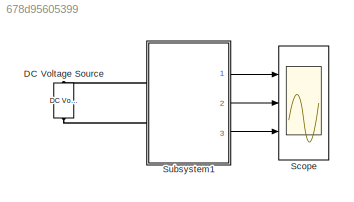
MODEL slx_678d95605399
KIND model
CONFIG AbsTol = auto
CONFIG EnableMultiTasking = off
CONFIG FixedStep = auto
CONFIG MaxStep = auto
CONFIG MinStep = auto
CONFIG RelTol = 1e-3
CONFIG SampleTimeConstraint = Unconstrained
CONFIG Solver = ode23tb
CONFIG SolverName = ode23tb
CONFIG StartTime = 0.0
CONFIG StopTime = 4.0
BLOCK [Reference] DC Voltage Source  REF=powerlib/Electrical
Sources/DC Voltage Source
  Ports = [0, 0, 0, 0, 0, 1, 1]
  SourceBlock = powerlib/Electrical\nSources/DC Voltage Source
  SourceProductBaseCode = PS
  SourceProductName = Simscape Power Systems
  SourceType = DC Voltage Source
BLOCK [Scope] Scope
  Floating = off
  NumInputPorts = 3
  Ports = [3]
  ScopeSpecificationString = Simulink.scopes.TimeScopeBlockCfg('CurrentConfiguration', extmgr.ConfigurationSet(extmgr.Configuration('Core','General UI',true),extmgr.Configuration('Core','Source UI',true),extmgr.Configuration('Sources','WiredSimulink',true),extmgr.Configuration('Visuals','Time Domain',true,'SerializedDisplays',{struct('MinYLimReal','49.27852','MaxYLimReal','49.9601','YLabelReal','','MinYLimMag','0.00000','MaxY...<+2754ch>
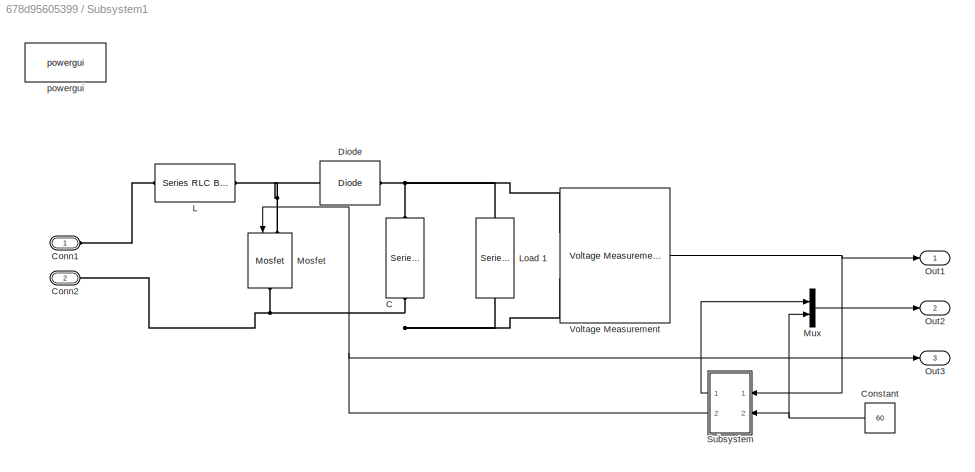
BLOCK [SubSystem] Subsystem1
  Ports = [0, 3, 0, 0, 0, 2]
  RequestExecContextInheritance = off
BLOCK [Reference] Subsystem1/C   REF=powerlib/Elements/Series RLC Branch
  Ports = [0, 0, 0, 0, 0, 1, 1]
  SourceBlock = powerlib/Elements/Series RLC Branch
  SourceProductBaseCode = PS
  SourceProductName = Simscape Power Systems
  SourceType = Series RLC Branch
BLOCK [PMIOPort] Subsystem1/Conn1
  Side = Left
BLOCK [PMIOPort] Subsystem1/Conn2
  Port = 2
  Side = Left
BLOCK [Constant] Subsystem1/Constant
  Value = 60
BLOCK [Reference] Subsystem1/Diode  REF=powerlib/Power
Electronics/Diode
  Ports = [0, 0, 0, 0, 0, 1, 1]
  SourceBlock = powerlib/Power\nElectronics/Diode
  SourceProductBaseCode = PS
  SourceProductName = Simscape Power Systems
  SourceType = Diode
BLOCK [Reference] Subsystem1/L  REF=powerlib/Elements/Series RLC Branch
  Ports = [0, 0, 0, 0, 0, 1, 1]
  SourceBlock = powerlib/Elements/Series RLC Branch
  SourceProductBaseCode = PS
  SourceProductName = Simscape Power Systems
  SourceType = Series RLC Branch
BLOCK [Reference] Subsystem1/Load 1    REF=powerlib/Elements/Series RLC Branch
  Ports = [0, 0, 0, 0, 0, 1, 1]
  SourceBlock = powerlib/Elements/Series RLC Branch
  SourceProductBaseCode = PS
  SourceProductName = Simscape Power Systems
  SourceType = Series RLC Branch
BLOCK [Reference] Subsystem1/Mosfet  REF=powerlib/Power
Electronics/Mosfet
  Ports = [1, 0, 0, 0, 0, 1, 1]
  SourceBlock = powerlib/Power\nElectronics/Mosfet
  SourceProductBaseCode = PS
  SourceProductName = Simscape Power Systems
  SourceType = Mosfet
BLOCK [Mux] Subsystem1/Mux
  DisplayOption = bar
  Inputs = 2
  Ports = [2, 1]
BLOCK [Outport] Subsystem1/Out1
  IconDisplay = Port number
BLOCK [Outport] Subsystem1/Out2
  IconDisplay = Port number
  Port = 2
BLOCK [Outport] Subsystem1/Out3
  IconDisplay = Port number
  Port = 3
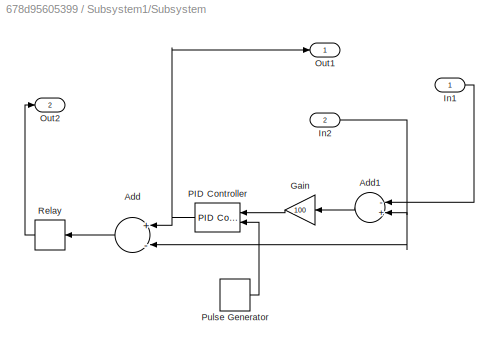
BLOCK [SubSystem] Subsystem1/Subsystem
  Ports = [2, 2]
  RequestExecContextInheritance = off
BLOCK [Sum] Subsystem1/Subsystem/Add
  InputSameDT = off
  Inputs = +-
  OutDataTypeStr = Inherit: Inherit via internal rule
  Ports = [2, 1]
  SaturateOnIntegerOverflow = off
BLOCK [Sum] Subsystem1/Subsystem/Add1
  InputSameDT = off
  Inputs = -+
  OutDataTypeStr = Inherit: Inherit via internal rule
  Ports = [2, 1]
  SaturateOnIntegerOverflow = off
BLOCK [Gain] Subsystem1/Subsystem/Gain
  Gain = 100
  OutDataTypeStr = Inherit: Inherit via internal rule
  ParamDataTypeStr = Inherit: Inherit via internal rule
  SaturateOnIntegerOverflow = off
BLOCK [Inport] Subsystem1/Subsystem/In1
  IconDisplay = Port number
BLOCK [Inport] Subsystem1/Subsystem/In2
  IconDisplay = Port number
  Port = 2
BLOCK [Outport] Subsystem1/Subsystem/Out1
  IconDisplay = Port number
BLOCK [Outport] Subsystem1/Subsystem/Out2
  IconDisplay = Port number
  Port = 2
BLOCK [Reference] Subsystem1/Subsystem/PID Controller  REF=simulink/Continuous/PID Controller
  Ports = [2, 1]
  SourceBlock = simulink/Continuous/PID Controller
  SourceProductBaseCode = SL
  SourceProductName = Simulink
  SourceType = PID 1dof
BLOCK [DiscretePulseGenerator] Subsystem1/Subsystem/Pulse Generator
  Period = 1/10000
  Ports = [0, 1]
  PulseType = Time based
  PulseWidth = 50
BLOCK [Relay] Subsystem1/Subsystem/Relay
  InputProcessing = Elements as channels (sample based)
BLOCK [Reference] Subsystem1/Voltage Measurement  REF=powerlib/Measurements/Voltage Measurement
  Ports = [0, 1, 0, 0, 0, 2]
  SourceBlock = powerlib/Measurements/Voltage Measurement
  SourceProductBaseCode = PS
  SourceProductName = Simscape Power Systems
  SourceType = Voltage Measurement
  UserDataPersistent = on
BLOCK [Reference] Subsystem1/powergui  REF=powerlib/powergui
  Ports = []
  Priority = 1
  SourceBlock = powerlib/powergui
  SourceProductBaseCode = PS
  SourceProductName = Simscape Power Systems
  SourceType = PSB option menu block
NET Subsystem1/Constant:1 -> Subsystem1/Mux:2, Subsystem1/Subsystem:2
LINE Subsystem1/Mux:1 -> Subsystem1/Out2:1
LINE Subsystem1/Subsystem/Add1:1 -> Subsystem1/Subsystem/Gain:1
LINE Subsystem1/Subsystem/Add:1 -> Subsystem1/Subsystem/Relay:1
LINE Subsystem1/Subsystem/Gain:1 -> Subsystem1/Subsystem/PID Controller:1
LINE Subsystem1/Subsystem/In1:1 -> Subsystem1/Subsystem/Add1:1
NET Subsystem1/Subsystem/In2:1 -> Subsystem1/Subsystem/Add1:2, Subsystem1/Subsystem/Add:2
NET Subsystem1/Subsystem/PID Controller:1 -> Subsystem1/Subsystem/Add:1, Subsystem1/Subsystem/Out1:1
LINE Subsystem1/Subsystem/Pulse Generator:1 -> Subsystem1/Subsystem/PID Controller:2
LINE Subsystem1/Subsystem/Relay:1 -> Subsystem1/Subsystem/Out2:1
LINE Subsystem1/Subsystem:1 -> Subsystem1/Mux:1
NET Subsystem1/Subsystem:2 -> Subsystem1/Mosfet:1, Subsystem1/Out3:1
NET Subsystem1/Voltage Measurement:1 -> Subsystem1/Out1:1, Subsystem1/Subsystem:1
LINE Subsystem1:1 -> Scope:1
LINE Subsystem1:2 -> Scope:2
LINE Subsystem1:3 -> Scope:3
PLINE DC Voltage Source:LConn1 -- Subsystem1:LConn2
PLINE DC Voltage Source:RConn1 -- Subsystem1:LConn1
PNET net1: Subsystem1/C :LConn1 -- Subsystem1/Diode:RConn1 -- Subsystem1/Load 1  :LConn1 -- Subsystem1/Voltage Measurement:LConn1
PNET net2: Subsystem1/C :RConn1 -- Subsystem1/Conn2:RConn1 -- Subsystem1/Load 1  :RConn1 -- Subsystem1/Mosfet:RConn1 -- Subsystem1/Voltage Measurement:LConn2
PLINE Subsystem1/Conn1:RConn1 -- Subsystem1/L:LConn1
PNET net3: Subsystem1/Diode:LConn1 -- Subsystem1/L:RConn1 -- Subsystem1/Mosfet:LConn1
note: NET lines group one-source signal fan-out (src -> all destinations, sorted); 1:1 wires keep LINE; PNET lines group multi-terminal physical nets as a canonical sorted terminal list (undirected conserving connections); 2-terminal nets keep the pairwise PLINE form
